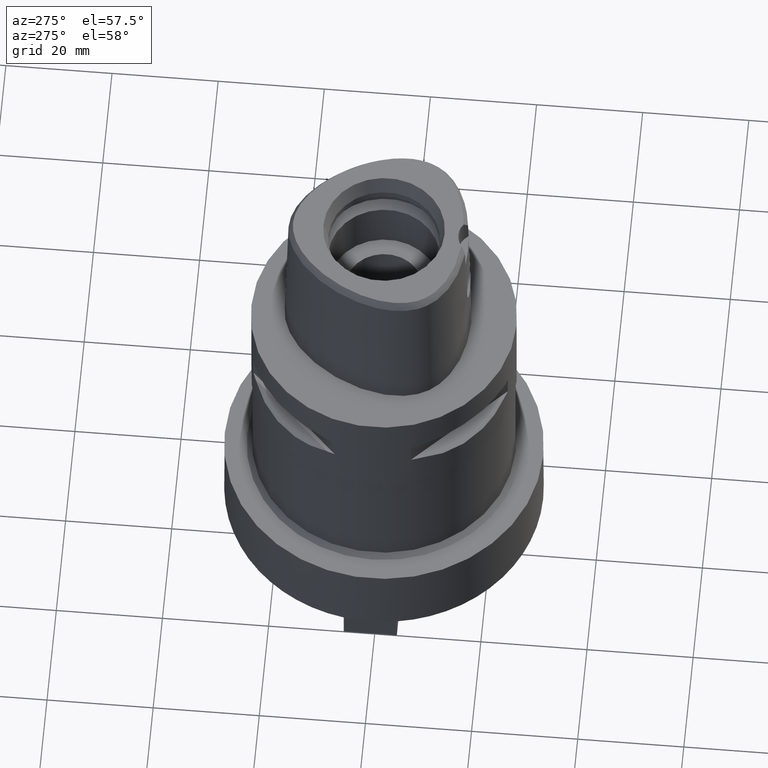
[diagram: clean part render]
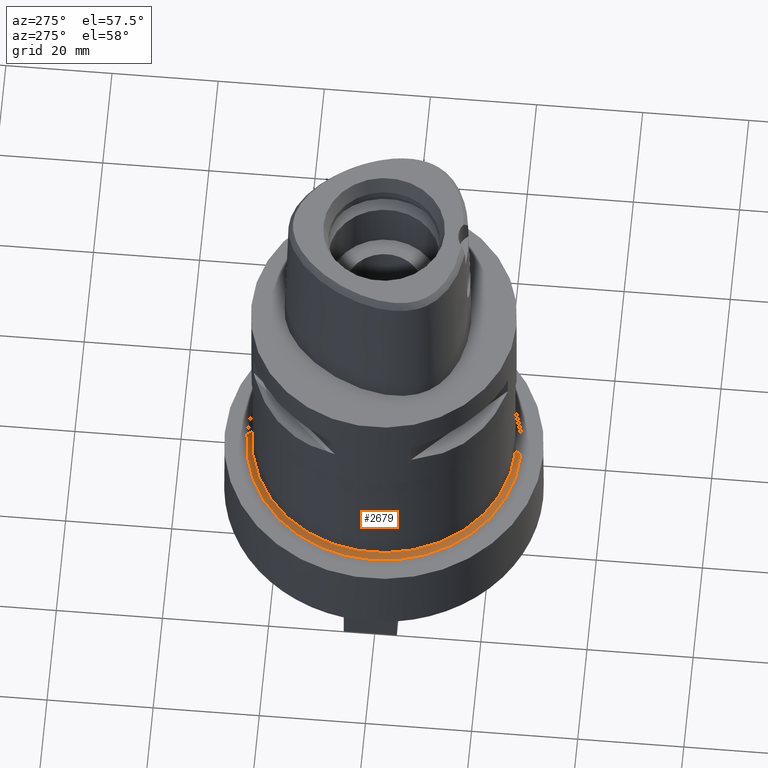
[diagram: same view with one face highlighted and labeled with its STEP entity id]
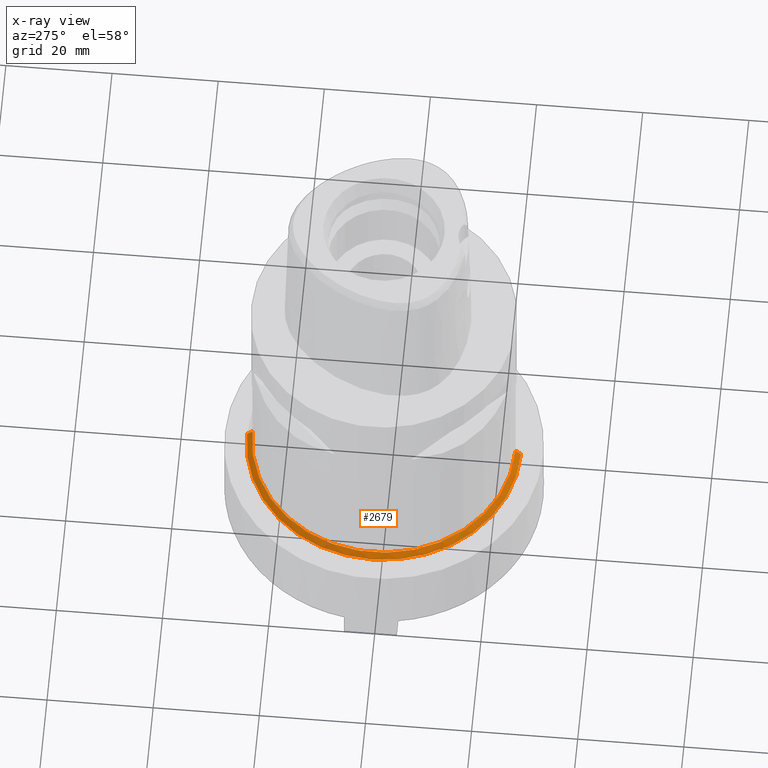
[diagram: x-ray of the same camera — body ghosted, the highlighted face saturated]
A machine part, auxiliary view. The second image highlights one B-rep face of the part: STEP entity #2679.
The next image is the same camera in x-ray: the body ghosted, the highlighted face saturated — about 0% of this face is hidden behind the body in this view.
In plain terms, the highlighted conical surface has half-angle 45 deg.
Its self-contained STEP definition (entity closure, byte-faithful):
#552=DIRECTION('',(0.E0,7.071067811866E-1,-7.071067811865E-1));
#553=VECTOR('',#552,1.414213562373E0);
#554=CARTESIAN_POINT('',(0.E0,2.48E1,-4.4E1));
#555=LINE('',#554,#553);
#567=CARTESIAN_POINT('',(0.E0,0.E0,-4.4E1));
#568=DIRECTION('',(0.E0,0.E0,1.E0));
#569=DIRECTION('',(0.E0,1.E0,0.E0));
#570=AXIS2_PLACEMENT_3D('',#567,#568,#569);
#575=DIRECTION('',(0.E0,-7.071067811866E-1,-7.071067811865E-1));
#576=VECTOR('',#575,1.414213562373E0);
#577=CARTESIAN_POINT('',(0.E0,-2.48E1,-4.4E1));
#578=LINE('',#577,#576);
#606=CARTESIAN_POINT('',(0.E0,0.E0,-4.5E1));
#607=DIRECTION('',(0.E0,0.E0,1.E0));
#608=DIRECTION('',(0.E0,1.E0,0.E0));
#609=AXIS2_PLACEMENT_3D('',#606,#607,#608);
#1746=CARTESIAN_POINT('',(0.E0,2.48E1,-4.4E1));
#1747=VERTEX_POINT('',#1746);
#1748=CARTESIAN_POINT('',(0.E0,-2.48E1,-4.4E1));
#1749=VERTEX_POINT('',#1748);
#1750=CARTESIAN_POINT('',(0.E0,2.58E1,-4.5E1));
#1751=VERTEX_POINT('',#1750);
#1752=CARTESIAN_POINT('',(0.E0,-2.58E1,-4.5E1));
#1753=VERTEX_POINT('',#1752);
#2667=CARTESIAN_POINT('',(0.E0,0.E0,-4.45E1));
#2668=DIRECTION('',(0.E0,0.E0,-1.E0));
#2669=DIRECTION('',(0.E0,-1.E0,0.E0));
#2670=AXIS2_PLACEMENT_3D('',#2667,#2668,#2669);
#2671=CONICAL_SURFACE('',#2670,2.53E1,4.5E1);
#2672=ORIENTED_EDGE('',*,*,#2657,.F.);
#2673=ORIENTED_EDGE('',*,*,#2634,.T.);
#2674=ORIENTED_EDGE('',*,*,#2661,.T.);
#2676=ORIENTED_EDGE('',*,*,#2675,.F.);
#2677=EDGE_LOOP('',(#2672,#2673,#2674,#2676));
#2678=FACE_OUTER_BOUND('',#2677,.F.);
#571=CIRCLE('',#570,2.48E1);
#610=CIRCLE('',#609,2.58E1);
#2634=EDGE_CURVE('',#1747,#1749,#571,.T.);
#2657=EDGE_CURVE('',#1747,#1751,#555,.T.);
#2661=EDGE_CURVE('',#1749,#1753,#578,.T.);
#2675=EDGE_CURVE('',#1751,#1753,#610,.T.);
#2679=ADVANCED_FACE('',(#2678),#2671,.T.);